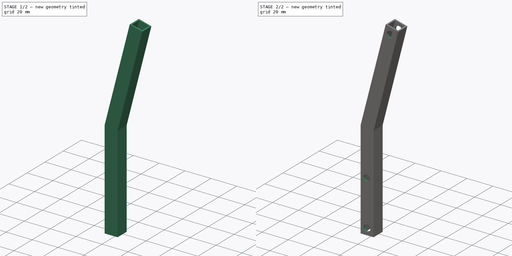
[diagram: build sequence overview — one tinted view per stage of 2, left to right]
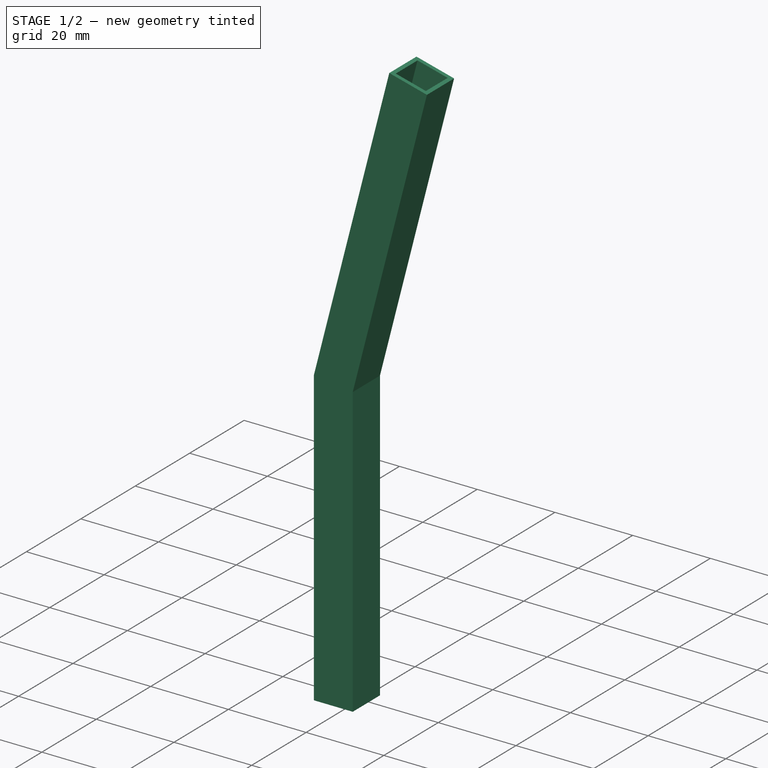
[diagram: stage 1 of 2 — iso view after this stage's code; geometry added in this stage tinted green]
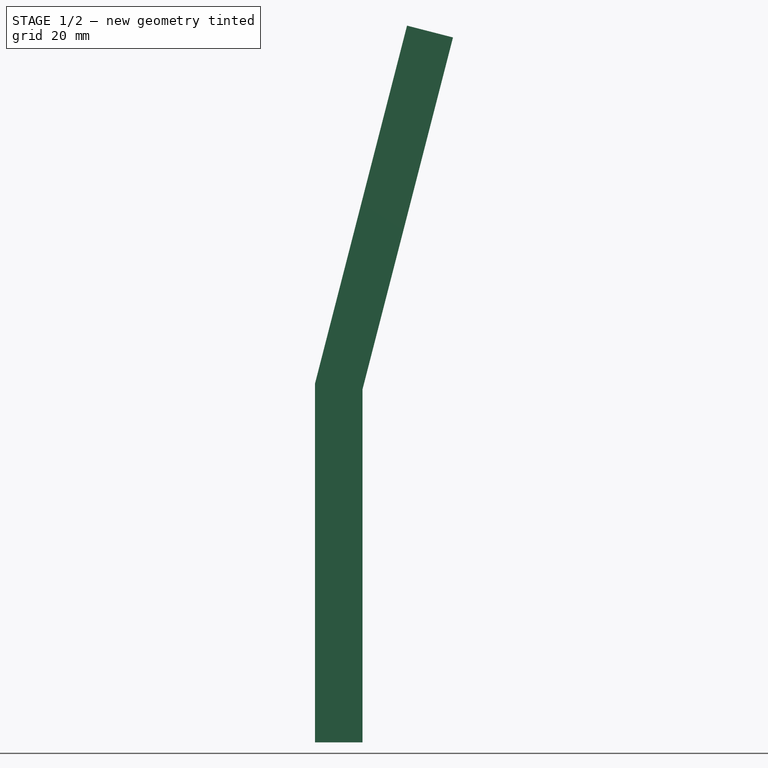
[diagram: stage 1 of 2 — front view after this stage's code; geometry added in this stage tinted green]
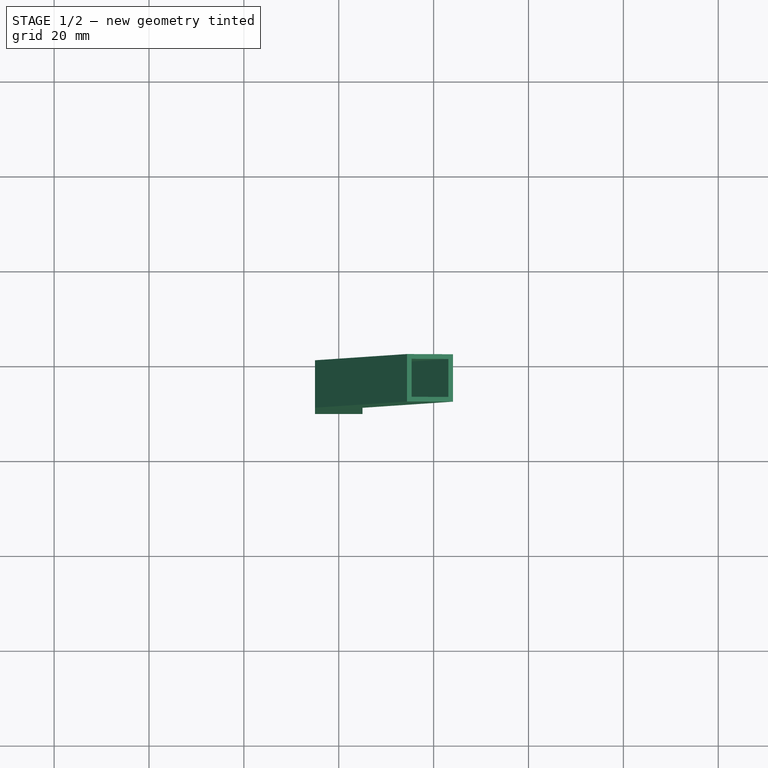
[diagram: stage 1 of 2 — top view after this stage's code; geometry added in this stage tinted green]
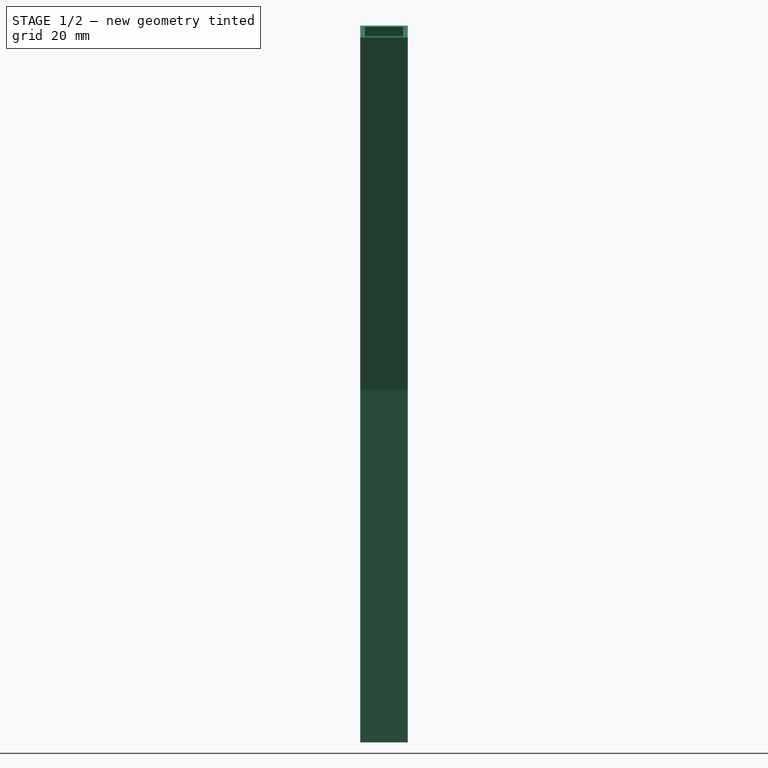
[diagram: stage 1 of 2 — right view after this stage's code; geometry added in this stage tinted green]
FCSTD DOCUMENT  (FreeCAD 0.18R)
Label: tibia
License: All rights reserved
LicenseURL: http://en.wikipedia.org/wiki/All_rights_reserved
objects: Sketcher::SketchObject×2, PartDesign::Pad×1, PartDesign::Thickness×1, PartDesign::Pocket×1, PartDesign::Body×1
note: 8 computed .brp shape members not serialized (recipe doc carries the construction recipe); baked Part::Feature solids carry a one-line shape summary decoded from their .brp

FEATURE [Sketcher::SketchObject] Sketch
  MapMode = 5
  Placement = pos=(0,0,0) rot=(1,0,0;1.5708rad)
  Support = -> [XZ_Plane]
  sketch-geometry (13):
    g0: LineSegment [constr] StartX=0 StartY=0 StartZ=0 EndX=0 EndY=70 EndZ=0
    g1: LineSegment [constr] StartX=0 StartY=70 StartZ=0 EndX=18 EndY=140 EndZ=0
    g2: LineSegment StartX=-5 StartY=-5 StartZ=0 EndX=-5 EndY=70.6326 EndZ=0
    g3: LineSegment StartX=-5 StartY=70.6326 StartZ=0 EndX=14.4027 EndY=146.088 EndZ=0
    g4: LineSegment StartX=14.4027 StartY=146.088 StartZ=0 EndX=24.0877 EndY=143.597 EndZ=0
    g5: LineSegment StartX=24.0877 StartY=143.597 StartZ=0 EndX=5 EndY=69.3674 EndZ=0
    g6: LineSegment StartX=5 StartY=69.3674 StartZ=0 EndX=5 EndY=-5 EndZ=0
    g7: LineSegment StartX=5 StartY=-5 StartZ=0 EndX=-5 EndY=-5 EndZ=0
    g8: LineSegment [constr] StartX=0 StartY=0 StartZ=0 EndX=-5 EndY=-5 EndZ=0
    g9: LineSegment [constr] StartX=0 StartY=0 StartZ=0 EndX=5 EndY=-5 EndZ=0
    g10: LineSegment [constr] StartX=18 StartY=140 StartZ=0 EndX=19.2452 EndY=144.842 EndZ=0
    g11: LineSegment [constr] StartX=-4.84246 StartY=71.2452 StartZ=0 EndX=0 EndY=70 EndZ=0
    g12: LineSegment [constr] StartX=0 StartY=70 StartZ=0 EndX=4.84246 EndY=68.7548 EndZ=0
  constraints (37):
    c: Coincident(g0,g-1)
    c: Vertical(g0)
    c: Coincident(g1,g0)
    c: Distance(g0) = 70
    c: DistanceY(g0,g1) = 70
    c: DistanceX(g0,g1) = 18
    c: Vertical(g2)
    c: Coincident(g2,g3)
    c: Coincident(g3,g4)
    c: Coincident(g4,g5)
    c: Coincident(g5,g6)
    c: Vertical(g6)
    c: Coincident(g6,g7)
    c: Coincident(g7,g2)
    c: Horizontal(g7)
    c: DistanceY(g6,g-1) = 5
    c: Distance(g7) = 10
    c: Coincident(g8,g-1)
    c: Coincident(g8,g2)
    c: Coincident(g9,g-1)
    c: Coincident(g9,g6)
    c: Equal(g9,g8)
    c: Coincident(g10,g1)
    c: PointOnObject(g10,g4)
    c: Distance(g10) = 5
    c: Parallel(g10,g1)
    c: Perpendicular(g10,g4)
    c: Perpendicular(g5,g4)
    c: Perpendicular(g3,g4)
    c: PointOnObject(g11,g3)
    c: Coincident(g11,g0)
    c: Coincident(g12,g0)
    c: PointOnObject(g12,g5)
    c: Perpendicular(g5,g12)
    c: Perpendicular(g3,g11)
    c: Equal(g11,g12)
    c: Distance(g12) = 5
FEATURE [PartDesign::Pad] Pad
  Length = 10
  Length2 = 100
  Placement = pos=(0,0,0) rot=(1,0,0;1.5708rad)
  Profile = -> Sketch
  Type = 0
FEATURE [PartDesign::Thickness] Thickness
  Base = -> Pad [Face3,Face6]
  BaseFeature = -> Pad
  Join = 0
  Mode = 0
  Reversed = true
  Value = 1
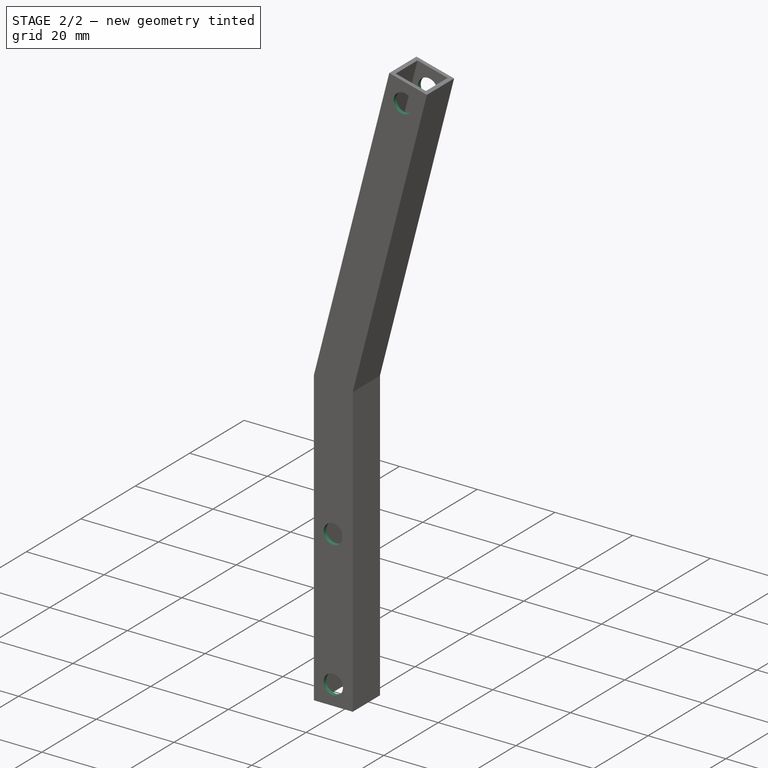
[diagram: stage 2 of 2 — iso view after this stage's code; geometry added in this stage tinted green]
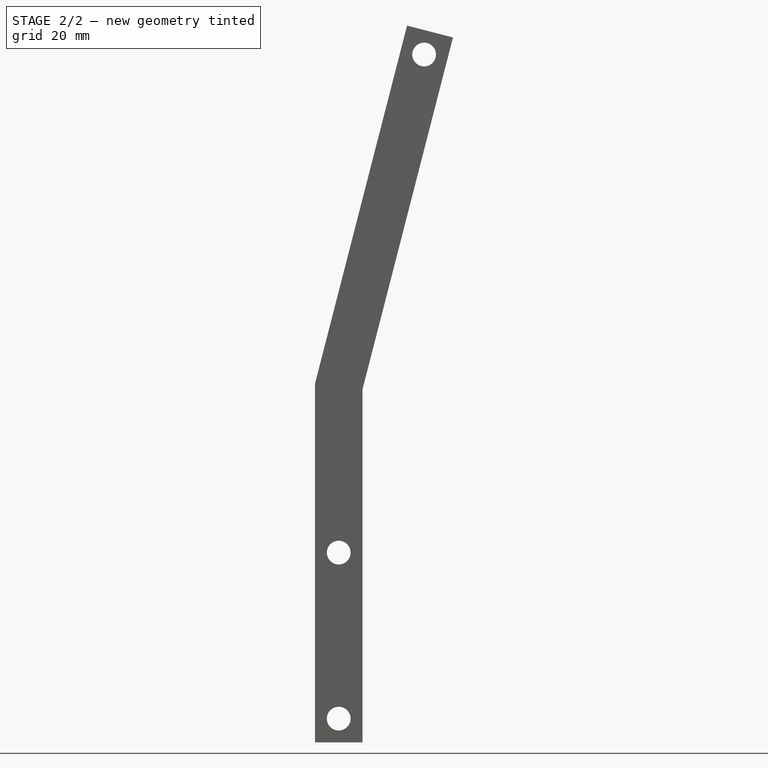
[diagram: stage 2 of 2 — front view after this stage's code; geometry added in this stage tinted green]
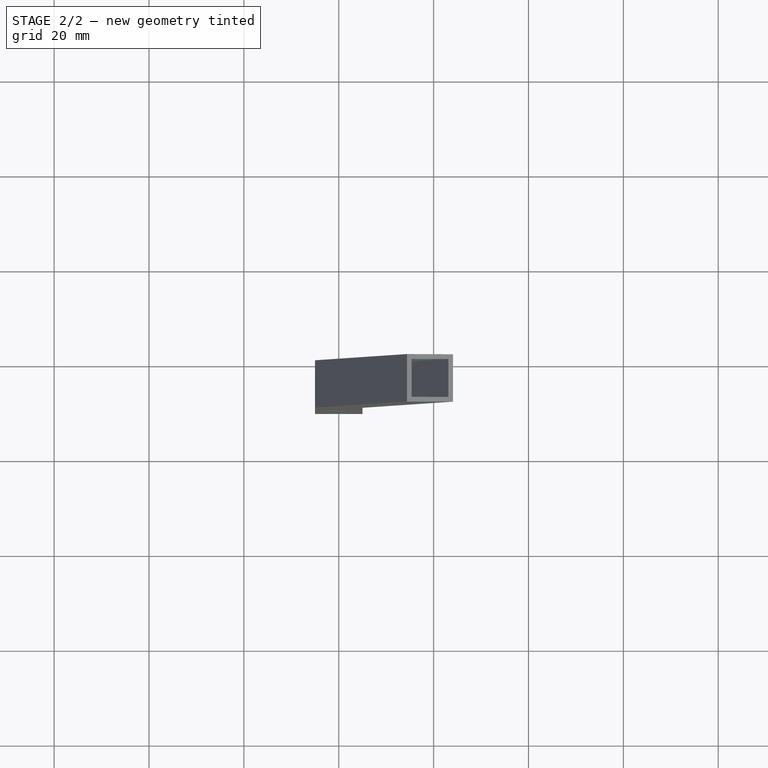
[diagram: stage 2 of 2 — top view after this stage's code; geometry added in this stage tinted green]
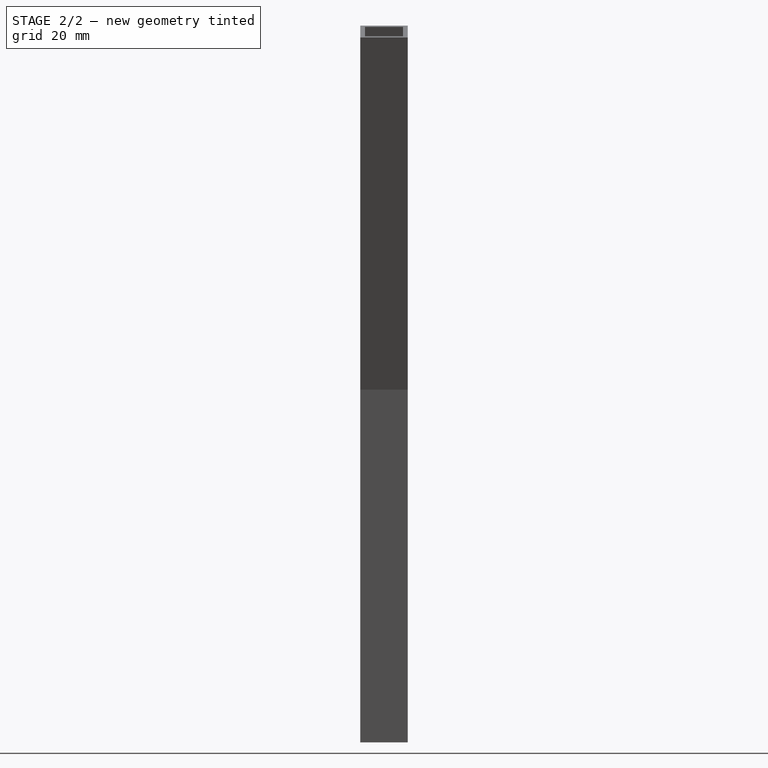
[diagram: stage 2 of 2 — right view after this stage's code; geometry added in this stage tinted green]
FEATURE [Sketcher::SketchObject] Sketch001
  ExternalGeometry = -> [Thickness]
  MapMode = 5
  Placement = pos=(0,-10,2.2e-15) rot=(1,0,0;1.5708rad)
  Support = -> [Thickness]
  sketch-geometry (6):
    g0: Circle CenterX=18 CenterY=140 CenterZ=0 NormalX=0 NormalY=0 NormalZ=1 AngleXU=0 Radius=2.5
    g1: Circle CenterX=0 CenterY=0 CenterZ=0 NormalX=0 NormalY=0 NormalZ=1 AngleXU=0 Radius=2.5
    g2: LineSegment [constr] StartX=14.4027 StartY=146.088 StartZ=0 EndX=18 EndY=140 EndZ=0
    g3: LineSegment [constr] StartX=18 StartY=140 StartZ=0 EndX=24.0877 EndY=143.597 EndZ=0
    g4: LineSegment [constr] StartX=19.2452 StartY=144.842 StartZ=0 EndX=18 EndY=140 EndZ=0
    g5: Circle CenterX=0 CenterY=35 CenterZ=0 NormalX=0 NormalY=0 NormalZ=1 AngleXU=0 Radius=2.5
  constraints (15):
    c: Coincident(g1,g-1)
    c: Radius(g1) = 2.5
    c: Coincident(g2,g-3)
    c: Coincident(g2,g0)
    c: Coincident(g3,g0)
    c: Coincident(g3,g-3)
    c: PointOnObject(g4,g-3)
    c: Coincident(g4,g0)
    c: Distance(g4) = 5
    c: Equal(g3,g2)
    c: Perpendicular(g-3,g4)
    c: Radius(g0) = 2.5
    c: PointOnObject(g5,g-2)
    c: Equal(g5,g1)
    c: DistanceY(g1,g5) = 35
FEATURE [PartDesign::Pocket] Pocket
  BaseFeature = -> Thickness
  Length = 5
  Length2 = 100
  Profile = -> Sketch001
  Type = 1
FEATURE [PartDesign::Body] Body
  Group = -> [Sketch,Pad,Thickness,Sketch001,Pocket]
  Origin = -> Origin
  Tip = -> Pocket
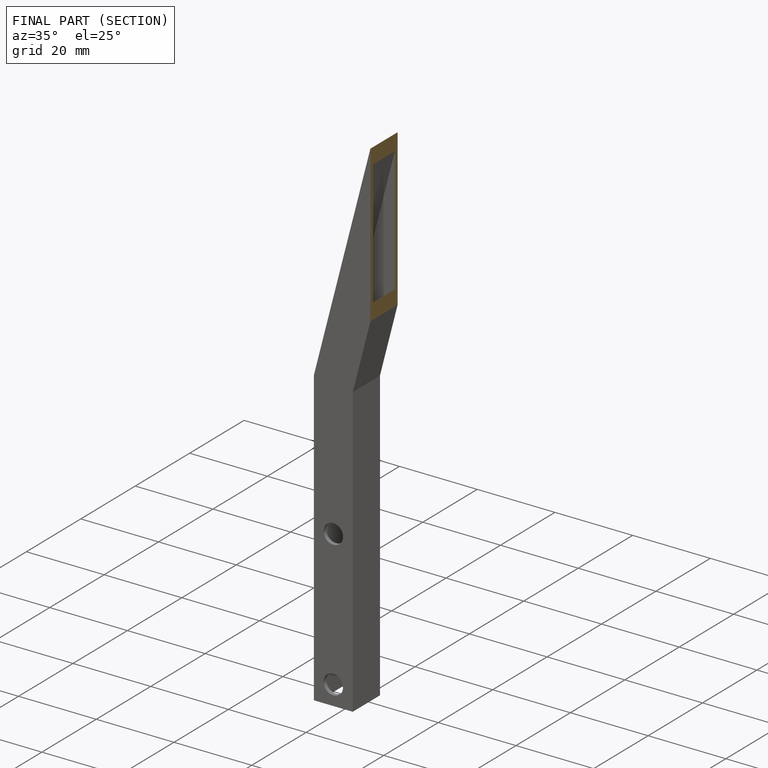
[diagram: finished part — half-section view (interior)]
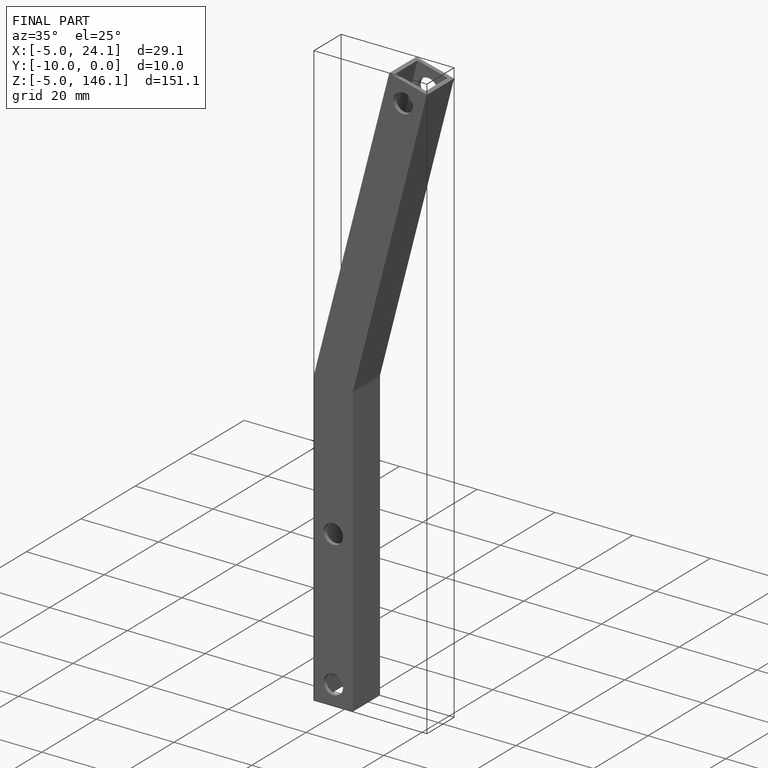
[diagram: finished part — iso view with bounding-box wireframe]
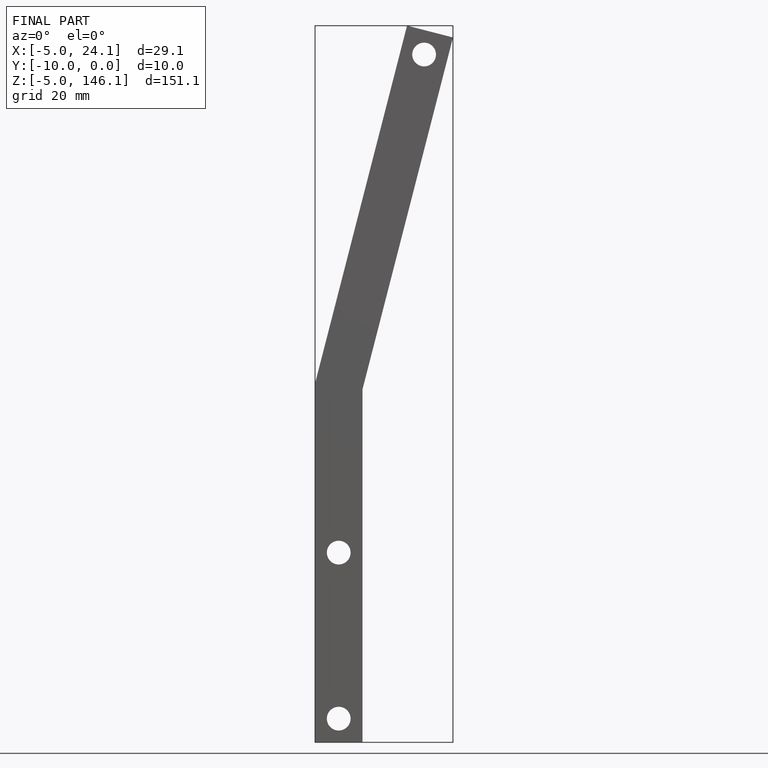
[diagram: finished part — front view with bounding-box wireframe]
